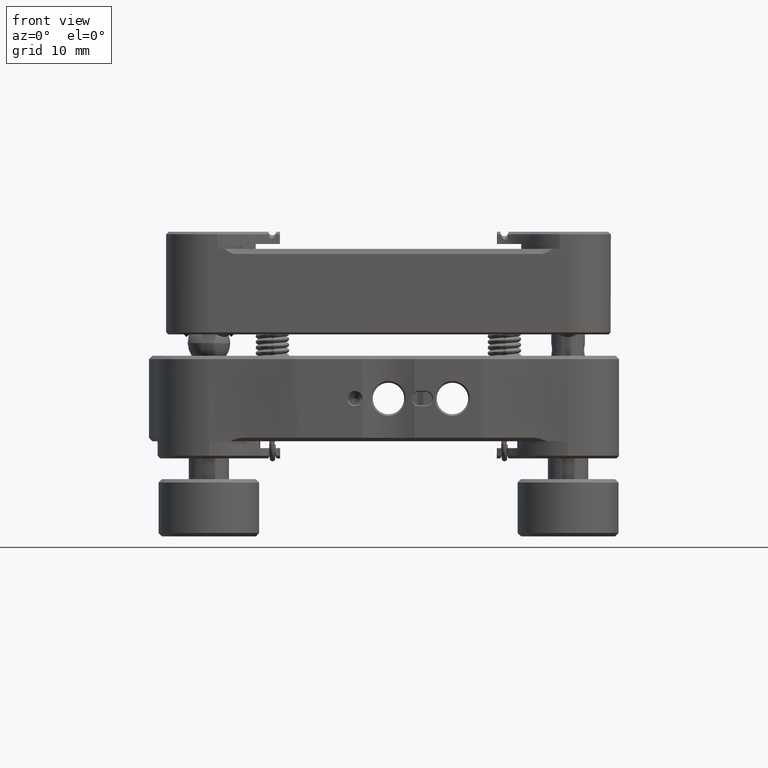
[diagram: clean part render]
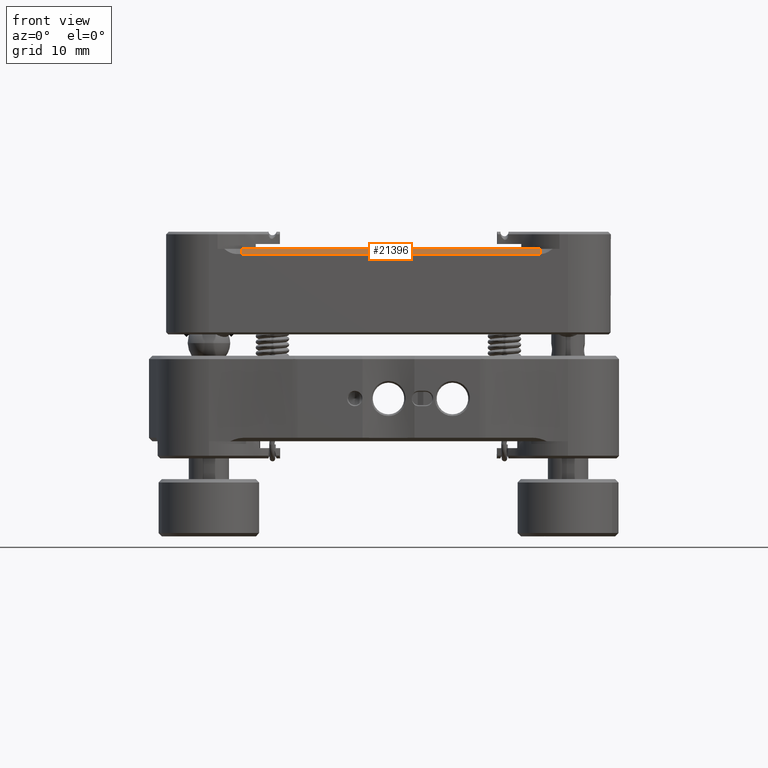
[diagram: same view with one face highlighted and labeled with its STEP entity id]
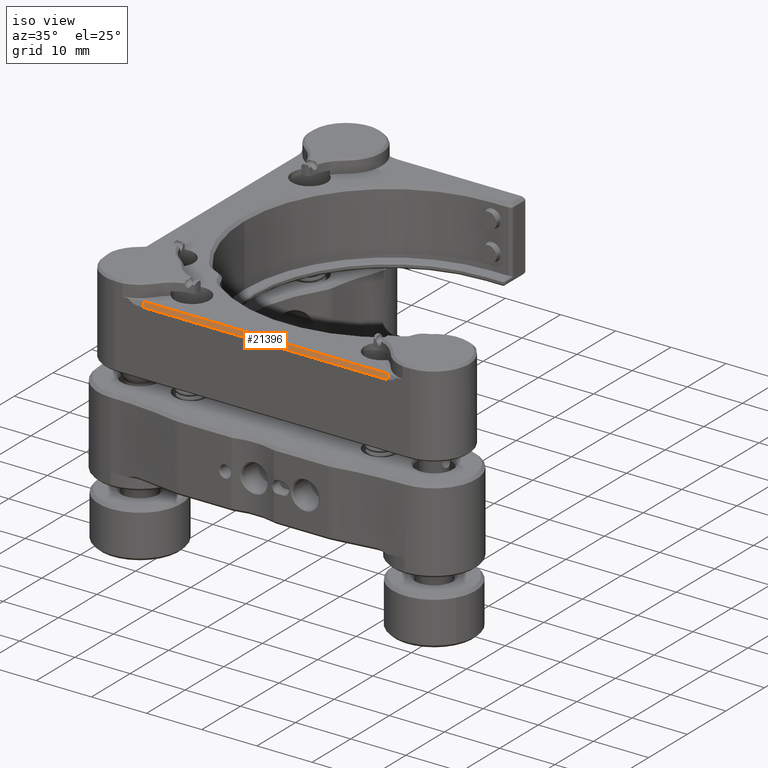
[diagram: same view with one face highlighted and labeled with its STEP entity id]
A machine part, front view. The second image highlights one B-rep face of the part: STEP entity #21396.
A second angle (iso view) of the same face is appended — the face is thin or edge-on in the first view.
In plain terms, the highlighted face is a freeform B-spline surface patch.
Its self-contained STEP definition (entity closure, byte-faithful):
#135 = CARTESIAN_POINT ( 'NONE',  ( -63.26943147732802686, 7.905580317473043017, 29.33520215995490332 ) ) ;
#335 = ORIENTED_EDGE ( 'NONE', *, *, #25272, .F. ) ;
#2289 = LINE ( 'NONE', #13169, #2432 ) ;
#2432 = VECTOR ( 'NONE', #20340, 1000.000000000000000 ) ;
#2454 = CARTESIAN_POINT ( 'NONE',  ( -63.26943147732802686, 7.577498666341732303, 29.90345794419780390 ) ) ;
#3799 = CARTESIAN_POINT ( 'NONE',  ( -18.89117543239935060, 8.053747228677748282, 29.07856877605453150 ) ) ;
#4944 = EDGE_CURVE ( 'NONE', #10752, #6215, #2289, .T. ) ;
#5610 = CARTESIAN_POINT ( 'NONE',  ( -18.89117543239935060, 7.905580317473093643, 29.33520215995490332 ) ) ;
#5754 = CARTESIAN_POINT ( 'NONE',  ( -18.89117543239935060, 8.053747228677748282, 29.07856877605453150 ) ) ;
#6215 = VERTEX_POINT ( 'NONE', #24822 ) ;
#6592 = EDGE_LOOP ( 'NONE', ( #19616, #21320, #335, #23394 ) ) ;
#7023 = CARTESIAN_POINT ( 'NONE',  ( -18.89117543239935060, 7.577498666341780265, 29.90345794419780390 ) ) ;
#7300 = CARTESIAN_POINT ( 'NONE',  ( -33.68392744737557365, 8.053747228677737624, 29.07856877605453150 ) ) ;
#7465 = CARTESIAN_POINT ( 'NONE',  ( -33.68392744737557365, 7.577498666341768718, 29.90345794419780390 ) ) ;
#9225 = CARTESIAN_POINT ( 'NONE',  ( -48.47667946235180381, 8.053747228677719860, 29.07856877605453150 ) ) ;
#9373 = CARTESIAN_POINT ( 'NONE',  ( -18.89117543239935060, 8.053747228677748282, 29.07856877605453150 ) ) ;
#10752 = VERTEX_POINT ( 'NONE', #11928 ) ;
#11320 = CARTESIAN_POINT ( 'NONE',  ( -63.26943147732802686, 7.757413406268386602, 29.59183554385527870 ) ) ;
#11432 = CARTESIAN_POINT ( 'NONE',  ( -33.68392744737557365, 7.894997707899082506, 29.35353183210228778 ) ) ;
#11583 = CARTESIAN_POINT ( 'NONE',  ( -63.26943147732802686, 7.894997707899044315, 29.35353183210228778 ) ) ;
#11928 = CARTESIAN_POINT ( 'NONE',  ( -63.26943147732802686, 7.609246495063731075, 29.84846892775565408 ) ) ;
#12569 = VERTEX_POINT ( 'NONE', #3799 ) ;
#13169 = CARTESIAN_POINT ( 'NONE',  ( -40.66343117310590571, 7.609246495063755944, 29.84846892775564697 ) ) ;
#13689 = CARTESIAN_POINT ( 'NONE',  ( -18.89117543239935060, 7.609246495063779925, 29.84846892775564697 ) ) ;
#13758 = FACE_OUTER_BOUND ( 'NONE', #6592, .T. ) ;
#14212 = CARTESIAN_POINT ( 'NONE',  ( -48.47667946235180381, 7.736248187120406072, 29.62849488815004761 ) ) ;
#15385 = B_SPLINE_CURVE_WITH_KNOTS ( 'NONE', 3,
 ( #27436, #7300, #16096, #16244 ),
 .UNSPECIFIED., .F., .F.,
 ( 4, 4 ),
 ( 0.000000000000000000, 1.000000000000000000 ),
 .UNSPECIFIED. ) ;
#15528 = EDGE_CURVE ( 'NONE', #21670, #10752, #17879, .T. ) ;
#15971 = CARTESIAN_POINT ( 'NONE',  ( -18.89117543239935060, 7.736248187120436270, 29.62849488815004761 ) ) ;
#16096 = CARTESIAN_POINT ( 'NONE',  ( -48.47667946235180381, 8.053747228677719860, 29.07856877605453150 ) ) ;
#16244 = CARTESIAN_POINT ( 'NONE',  ( -63.26943147732802686, 8.053747228677700321, 29.07856876018479753 ) ) ;
#16402 = CARTESIAN_POINT ( 'NONE',  ( -48.47667946235180381, 7.894997707899070072, 29.35353183210228778 ) ) ;
#17879 = B_SPLINE_CURVE_WITH_KNOTS ( 'NONE', 3,
 ( #24960, #135, #11320, #20401 ),
 .UNSPECIFIED., .F., .F.,
 ( 4, 4 ),
 ( 0.000000000000000000, 0.9333376912125956881 ),
 .UNSPECIFIED. ) ;
#18461 = CARTESIAN_POINT ( 'NONE',  ( -63.26943147732802686, 8.053747228677700321, 29.07856877605453150 ) ) ;
#19616 = ORIENTED_EDGE ( 'NONE', *, *, #4944, .F. ) ;
#19908 = CARTESIAN_POINT ( 'NONE',  ( -63.26943147732802686, 8.053747228677700321, 29.07856876018479753 ) ) ;
#20340 = DIRECTION ( 'NONE',  ( 1.000000000000000000, 1.040703997586386580E-15, -1.055567334785558793E-17 ) ) ;
#20401 = CARTESIAN_POINT ( 'NONE',  ( -63.26943147732802686, 7.609246495063731075, 29.84846892775565408 ) ) ;
#20506 = CARTESIAN_POINT ( 'NONE',  ( -18.89117543239935060, 7.894997707899092276, 29.35353183210228778 ) ) ;
#20642 = CARTESIAN_POINT ( 'NONE',  ( -63.26943147732802686, 7.736248187120388309, 29.62849488815004761 ) ) ;
#21005 = CARTESIAN_POINT ( 'NONE',  ( -18.89117543239935060, 7.757413406268438116, 29.59183554385528225 ) ) ;
#21320 = ORIENTED_EDGE ( 'NONE', *, *, #15528, .F. ) ;
#21396 = ADVANCED_FACE ( 'NONE', ( #13758 ), #22829, .F. ) ;
#21670 = VERTEX_POINT ( 'NONE', #19908 ) ;
#22721 = CARTESIAN_POINT ( 'NONE',  ( -48.47667946235180381, 7.577498666341750067, 29.90345794419780390 ) ) ;
#22780 = EDGE_CURVE ( 'NONE', #6215, #12569, #26067, .T. ) ;
#22829 = B_SPLINE_SURFACE_WITH_KNOTS ( 'NONE', 3, 3, ( 
 ( #2454, #20642, #11583, #18461 ),
 ( #22721, #14212, #16402, #9225 ),
 ( #7465, #25376, #11432, #27161 ),
 ( #7023, #15971, #20506, #9373 ) ),
 .UNSPECIFIED., .F., .F., .F.,
 ( 4, 4 ),
 ( 4, 4 ),
 ( 0.000000000000000000, 1.000000000000000000 ),
 ( 0.000000000000000000, 1.000000000000000000 ),
 .UNSPECIFIED. ) ;
#23394 = ORIENTED_EDGE ( 'NONE', *, *, #22780, .F. ) ;
#24822 = CARTESIAN_POINT ( 'NONE',  ( -18.89117543239935060, 7.609246495063779925, 29.84846892775564697 ) ) ;
#24960 = CARTESIAN_POINT ( 'NONE',  ( -63.26943147732802686, 8.053747228677700321, 29.07856876018479753 ) ) ;
#25272 = EDGE_CURVE ( 'NONE', #12569, #21670, #15385, .T. ) ;
#25376 = CARTESIAN_POINT ( 'NONE',  ( -33.68392744737557365, 7.736248187120424724, 29.62849488815004761 ) ) ;
#26067 = B_SPLINE_CURVE_WITH_KNOTS ( 'NONE', 3,
 ( #13689, #21005, #5610, #5754 ),
 .UNSPECIFIED., .F., .F.,
 ( 4, 4 ),
 ( 0.06666230878741147281, 1.000000000000000000 ),
 .UNSPECIFIED. ) ;
#27161 = CARTESIAN_POINT ( 'NONE',  ( -33.68392744737557365, 8.053747228677737624, 29.07856877605453150 ) ) ;
#27436 = CARTESIAN_POINT ( 'NONE',  ( -18.89117543239935060, 8.053747228677748282, 29.07856877605453150 ) ) ;